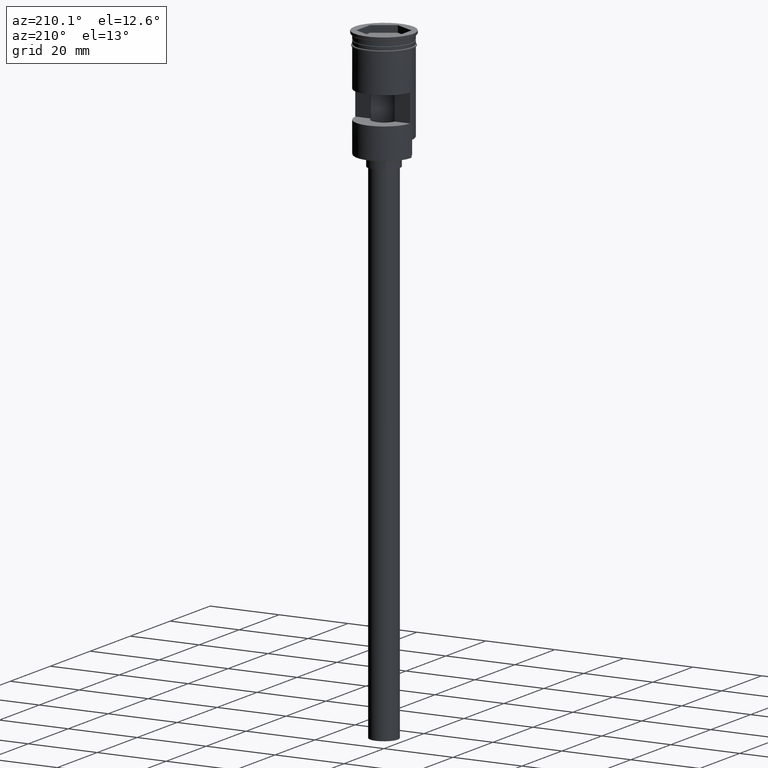
[diagram: clean part render]
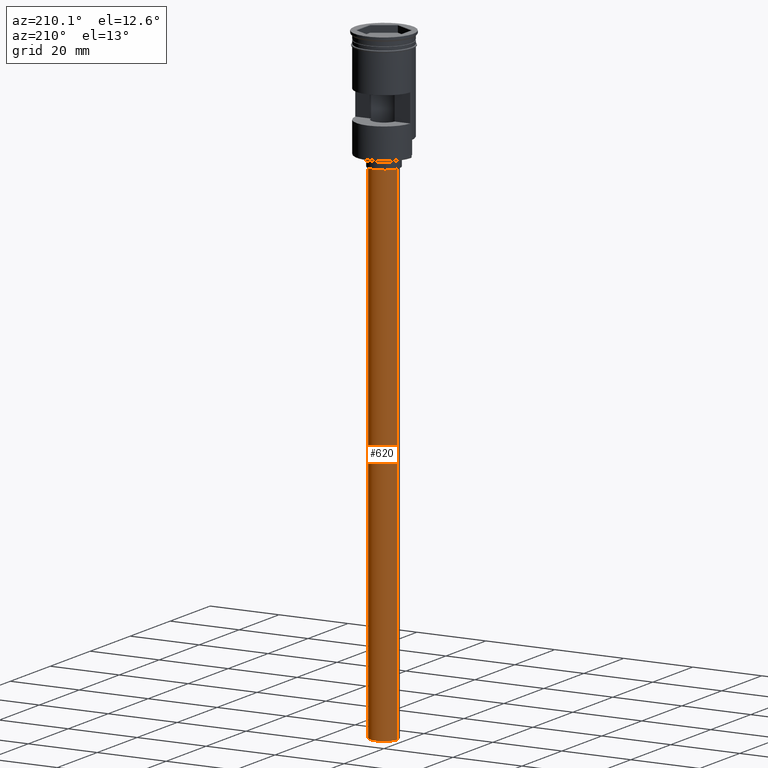
[diagram: same view with one face highlighted and labeled with its STEP entity id]
A machine part, auxiliary view. The second image highlights one B-rep face of the part: STEP entity #620.
In plain terms, the highlighted cylindrical surface (edge-blend (fillet) strip) has radius 4 mm, axis along (-0, -0, 1).
Its self-contained STEP definition (entity closure, byte-faithful):
#22 = VERTEX_POINT ( 'NONE', #929 ) ;
#34 = EDGE_CURVE ( 'NONE', #730, #489, #943, .T. ) ;
#56 = EDGE_CURVE ( 'NONE', #22, #215, #796, .T. ) ;
#88 = VECTOR ( 'NONE', #681, 1000.000000000000000 ) ;
#215 = VERTEX_POINT ( 'NONE', #1431 ) ;
#229 = DIRECTION ( 'NONE',  ( 1.000000000000000000, 0.000000000000000000, 0.000000000000000000 ) ) ;
#239 = CARTESIAN_POINT ( 'NONE',  ( 4.000000000000000000, 0.000000000000000000, -35.00000000000000000 ) ) ;
#245 = AXIS2_PLACEMENT_3D ( 'NONE', #576, #463, #1077 ) ;
#376 = ORIENTED_EDGE ( 'NONE', *, *, #1432, .F. ) ;
#443 = CARTESIAN_POINT ( 'NONE',  ( -4.000000000000000000, 4.898587196589412829E-16, -182.0000000000000000 ) ) ;
#463 = DIRECTION ( 'NONE',  ( 0.000000000000000000, 0.000000000000000000, -1.000000000000000000 ) ) ;
#483 = AXIS2_PLACEMENT_3D ( 'NONE', #1450, #717, #229 ) ;
#489 = VERTEX_POINT ( 'NONE', #239 ) ;
#534 = ORIENTED_EDGE ( 'NONE', *, *, #1340, .T. ) ;
#576 = CARTESIAN_POINT ( 'NONE',  ( 0.000000000000000000, 0.000000000000000000, -182.0000000000000000 ) ) ;
#617 = CARTESIAN_POINT ( 'NONE',  ( 4.000000000000000000, 0.000000000000000000, -182.0000000000000000 ) ) ;
#620 = ADVANCED_FACE ( 'NONE', ( #958 ), #1300, .T. ) ;
#640 = EDGE_LOOP ( 'NONE', ( #376, #1603, #534, #1054 ) ) ;
#681 = DIRECTION ( 'NONE',  ( -0.000000000000000000, -0.000000000000000000, 1.000000000000000000 ) ) ;
#691 = CARTESIAN_POINT ( 'NONE',  ( 4.000000000000000000, 0.000000000000000000, -182.0000000000000000 ) ) ;
#693 = AXIS2_PLACEMENT_3D ( 'NONE', #1505, #1009, #1499 ) ;
#717 = DIRECTION ( 'NONE',  ( -0.000000000000000000, -0.000000000000000000, 1.000000000000000000 ) ) ;
#730 = VERTEX_POINT ( 'NONE', #617 ) ;
#796 = LINE ( 'NONE', #443, #994 ) ;
#929 = CARTESIAN_POINT ( 'NONE',  ( -4.000000000000000000, 4.898587196589412829E-16, -182.0000000000000000 ) ) ;
#943 = LINE ( 'NONE', #691, #88 ) ;
#958 = FACE_OUTER_BOUND ( 'NONE', #640, .T. ) ;
#994 = VECTOR ( 'NONE', #1445, 1000.000000000000000 ) ;
#1009 = DIRECTION ( 'NONE',  ( 0.000000000000000000, 0.000000000000000000, -1.000000000000000000 ) ) ;
#1054 = ORIENTED_EDGE ( 'NONE', *, *, #34, .F. ) ;
#1077 = DIRECTION ( 'NONE',  ( -1.000000000000000000, 0.000000000000000000, 0.000000000000000000 ) ) ;
#1300 = CYLINDRICAL_SURFACE ( 'NONE', #483, 4.000000000000000000 ) ;
#1340 = EDGE_CURVE ( 'NONE', #215, #489, #1357, .T. ) ;
#1357 = CIRCLE ( 'NONE', #693, 4.000000000000000000 ) ;
#1431 = CARTESIAN_POINT ( 'NONE',  ( -4.000000000000000000, 4.898587196589412829E-16, -35.00000000000000000 ) ) ;
#1432 = EDGE_CURVE ( 'NONE', #22, #730, #1481, .T. ) ;
#1445 = DIRECTION ( 'NONE',  ( -0.000000000000000000, -0.000000000000000000, 1.000000000000000000 ) ) ;
#1450 = CARTESIAN_POINT ( 'NONE',  ( 0.000000000000000000, 0.000000000000000000, -182.0000000000000000 ) ) ;
#1481 = CIRCLE ( 'NONE', #245, 4.000000000000000000 ) ;
#1499 = DIRECTION ( 'NONE',  ( -1.000000000000000000, 0.000000000000000000, 0.000000000000000000 ) ) ;
#1505 = CARTESIAN_POINT ( 'NONE',  ( 0.000000000000000000, 0.000000000000000000, -35.00000000000000000 ) ) ;
#1603 = ORIENTED_EDGE ( 'NONE', *, *, #56, .T. ) ;